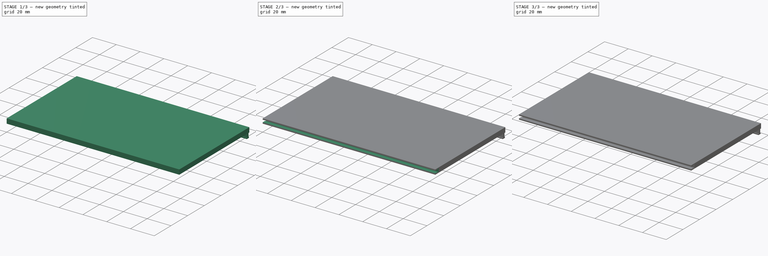
[diagram: build sequence overview — one tinted view per stage of 3, left to right]
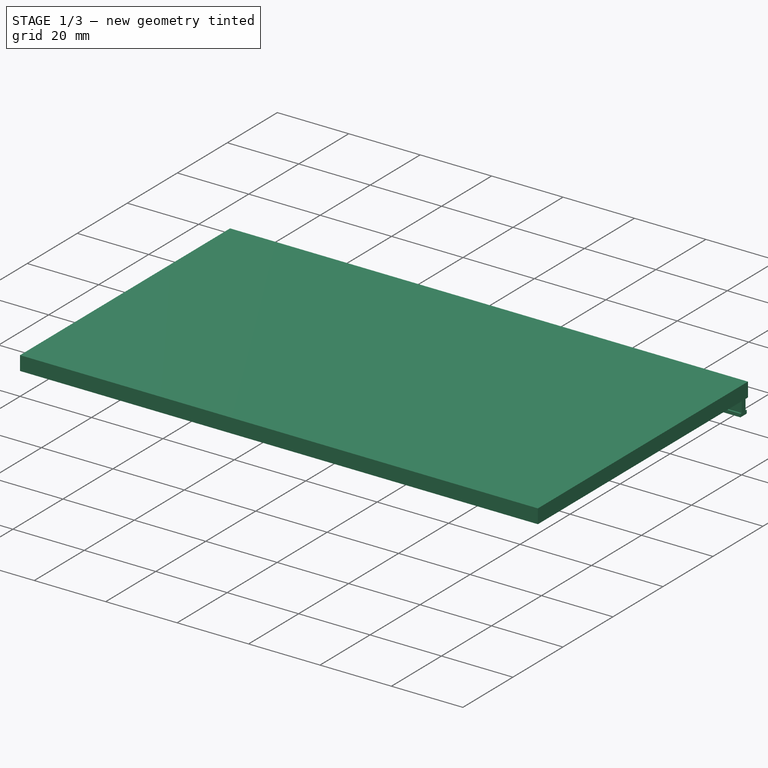
[diagram: stage 1 of 3 — iso view after this stage's code; geometry added in this stage tinted green]
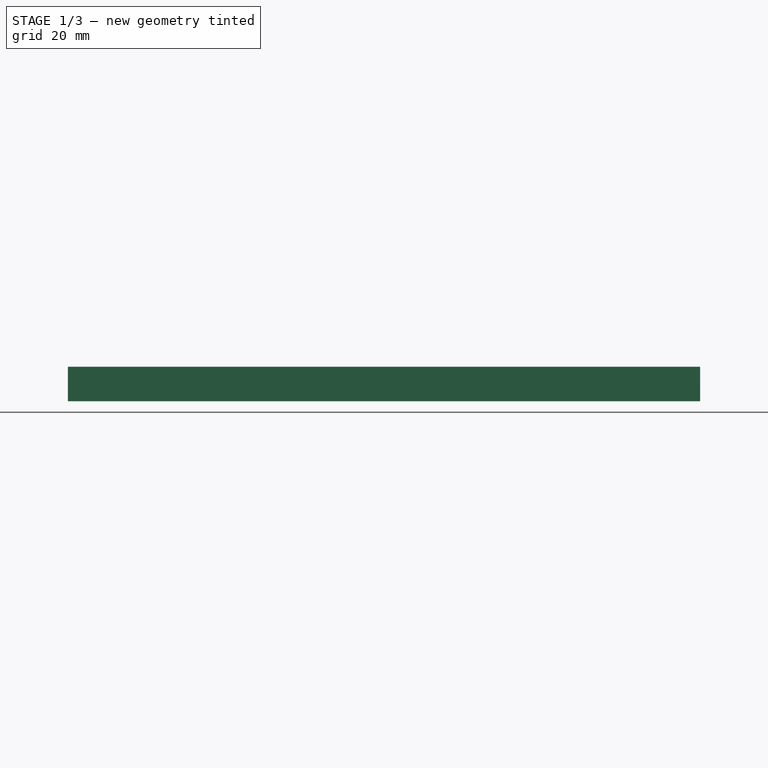
[diagram: stage 1 of 3 — front view after this stage's code; geometry added in this stage tinted green]
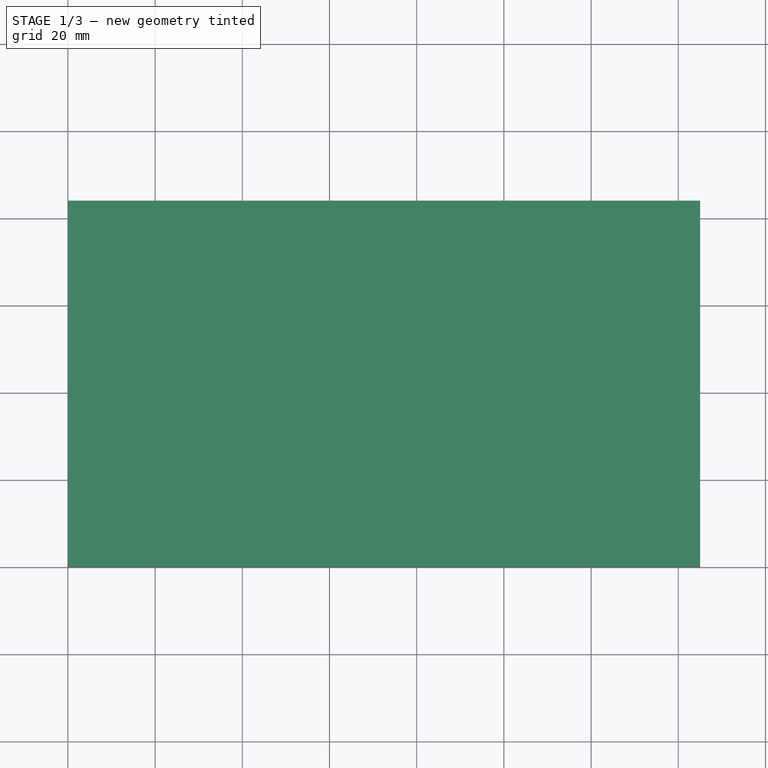
[diagram: stage 1 of 3 — top view after this stage's code; geometry added in this stage tinted green]
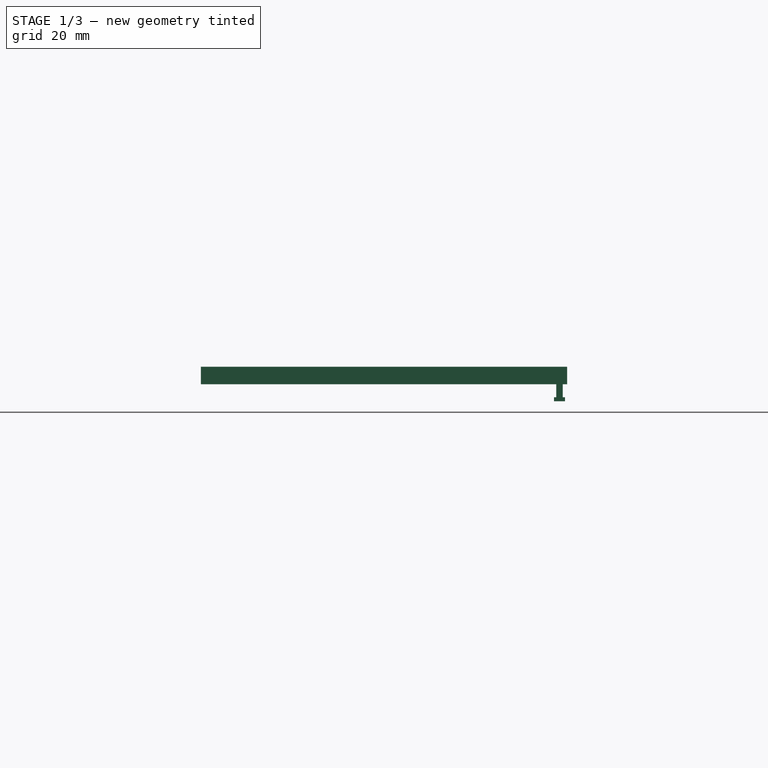
[diagram: stage 1 of 3 — right view after this stage's code; geometry added in this stage tinted green]
FCSTD DOCUMENT  (FreeCAD 1.0R38641 +468 (Git))
Label: Power-Box-Right-Side
License: All rights reserved
LicenseURL: https://en.wikipedia.org/wiki/All_rights_reserved
objects: Sketcher::SketchObject×5, PartDesign::Pad×3, PartDesign::Pocket×2, PartDesign::Body×1
note: 26 computed .brp shape members not serialized (recipe doc carries the construction recipe); baked Part::Feature solids carry a one-line shape summary decoded from their .brp

FEATURE [Sketcher::SketchObject] Sketch185  label="pb-panel"
  ArcFitTolerance = 1e-06
  AttachmentSupport = -> [XY_Plane020]
  FullyConstrained = true
  MakeInternals = false
  MapMode = 5
  sketch-geometry (4):
    g0: LineSegment StartX=0 StartY=84 StartZ=0 EndX=0 EndY=0 EndZ=0
    g1: LineSegment StartX=0 StartY=0 StartZ=0 EndX=145 EndY=0 EndZ=0
    g2: LineSegment StartX=145 StartY=0 StartZ=0 EndX=145 EndY=84 EndZ=0
    g3: LineSegment StartX=145 StartY=84 StartZ=0 EndX=0 EndY=84 EndZ=0
  constraints (12):
    c: Coincident(g0,g1)
    c: Coincident(g1,g2)
    c: Coincident(g2,g3)
    c: Coincident(g3,g0)
    c: Vertical(g0)
    c: Vertical(g2)
    c: Horizontal(g1)
    c: Horizontal(g3)
    c: Distance(g0,g2) = 145
    c: Distance(g1,g3) = 84
    c: DistanceX(g-1,g0) = 0
    c: DistanceY(g-1,g0) = 0
FEATURE [PartDesign::Pad] Pad088
  Direction = (0,0,1)
  Length = 4
  Length2 = 10
  Profile = -> Sketch185
  ReferenceAxis = -> Sketch185 [N_Axis]
  Refine = true
  Suppressed = false
  Type = 0
FEATURE [Sketcher::SketchObject] Sketch186  label="pb-top-trail"
  ArcFitTolerance = 1e-06
  AttachmentSupport = -> [YZ_Plane020]
  FullyConstrained = true
  MakeInternals = false
  MapMode = 5
  Placement = pos=(0,0,0) rot=(0.57735,0.57735,0.57735;2.0944rad)
  sketch-geometry (8):
    g0: LineSegment StartX=81.5 StartY=0 StartZ=0 EndX=83 EndY=0 EndZ=0
    g1: LineSegment StartX=83 StartY=0 StartZ=0 EndX=83 EndY=-3 EndZ=0
    g2: LineSegment StartX=83 StartY=-3 StartZ=0 EndX=81.5 EndY=-3 EndZ=0
    g3: LineSegment StartX=81.5 StartY=-3 StartZ=0 EndX=81.5 EndY=0 EndZ=0
    g4: LineSegment StartX=83.5 StartY=-3 StartZ=0 EndX=81 EndY=-3 EndZ=0
    g5: LineSegment StartX=81 StartY=-3 StartZ=0 EndX=81 EndY=-3.9 EndZ=0
    g6: LineSegment StartX=81 StartY=-3.9 StartZ=0 EndX=83.5 EndY=-3.9 EndZ=0
    g7: LineSegment StartX=83.5 StartY=-3.9 StartZ=0 EndX=83.5 EndY=-3 EndZ=0
  constraints (24):
    c: Coincident(g0,g1)
    c: Coincident(g1,g2)
    c: Coincident(g2,g3)
    c: Coincident(g3,g0)
    c: Horizontal(g0)
    c: Horizontal(g2)
    c: Vertical(g1)
    c: Vertical(g3)
    c: Distance(g1,g3) = 1.5
    c: Distance(g0,g2) = 3
    c: Coincident(g4,g5)
    c: Coincident(g5,g6)
    c: Coincident(g6,g7)
    c: Coincident(g7,g4)
    c: Horizontal(g4)
    c: Horizontal(g6)
    c: Vertical(g5)
    c: Vertical(g7)
    c: Distance(g5,g7) = 2.5
    c: Distance(g4,g6) = 0.9
    c: DistanceY(g4,g1) = 0
    c: DistanceY(g0,g-1) = 0
    c: DistanceX(g-1,g0) = 83
    c: DistanceX(g1,g4) = 0.5
FEATURE [PartDesign::Pad] Pad089
  BaseFeature = -> Pad088
  Direction = (1,0,0)
  Length = 145
  Length2 = 0
  Profile = -> Sketch186
  ReferenceAxis = -> Sketch186 [N_Axis]
  Refine = true
  Suppressed = false
  Type = 0
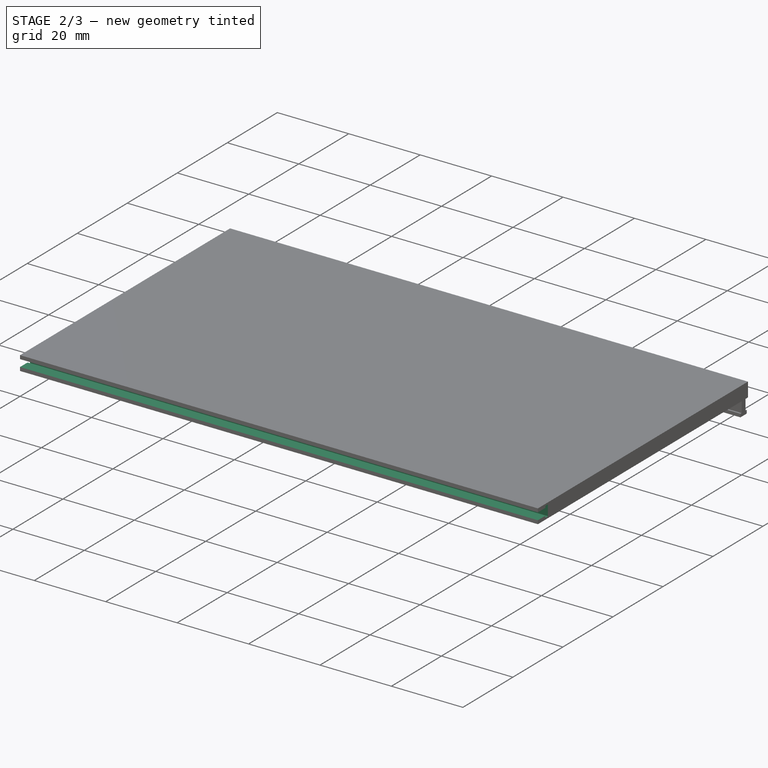
[diagram: stage 2 of 3 — iso view after this stage's code; geometry added in this stage tinted green]
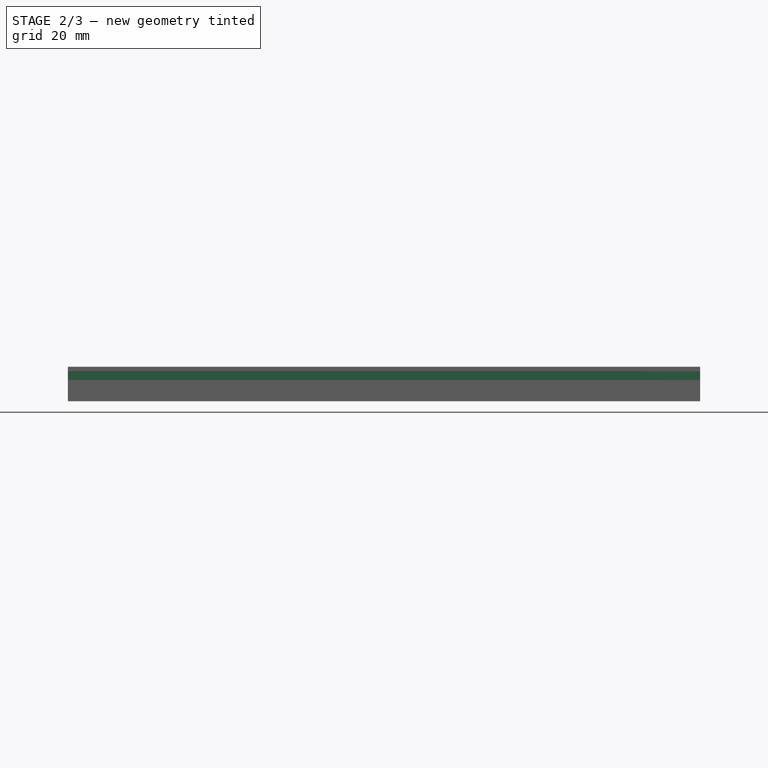
[diagram: stage 2 of 3 — front view after this stage's code; geometry added in this stage tinted green]
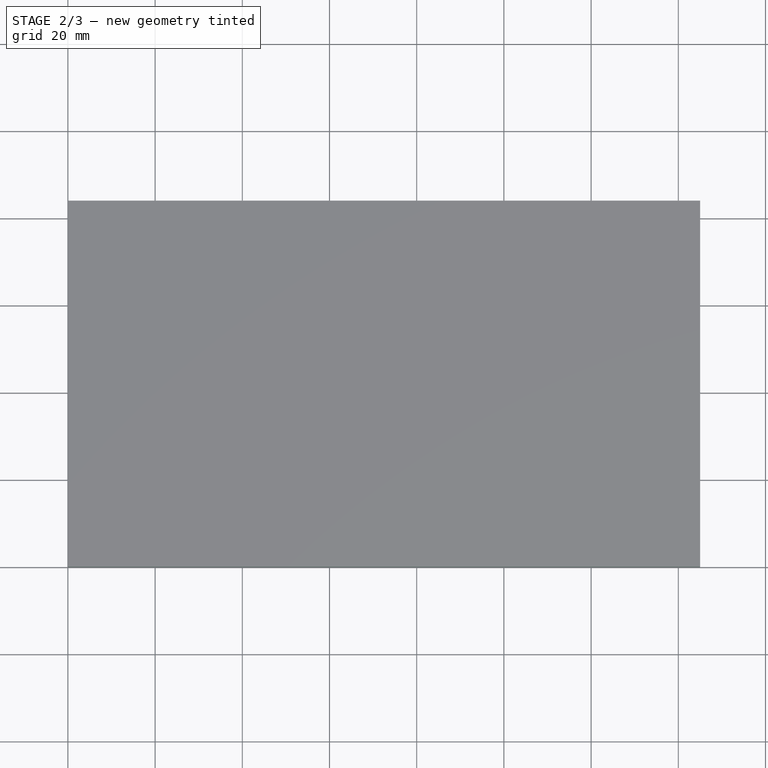
[diagram: stage 2 of 3 — top view after this stage's code; geometry added in this stage tinted green]
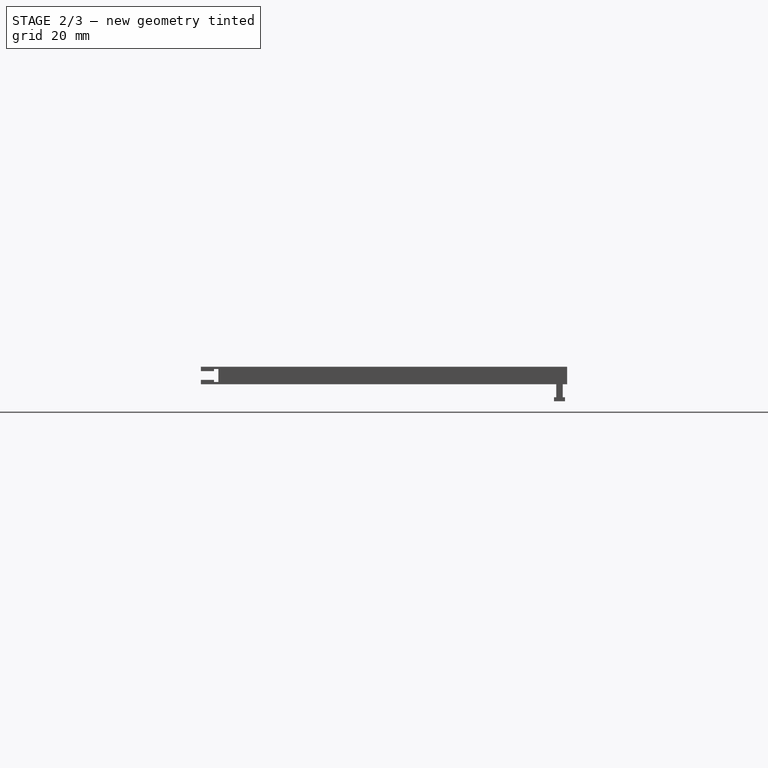
[diagram: stage 2 of 3 — right view after this stage's code; geometry added in this stage tinted green]
FEATURE [Sketcher::SketchObject] Sketch187  label="pb-bottom-trail"
  ArcFitTolerance = 1e-06
  AttachmentSupport = -> [YZ_Plane020]
  FullyConstrained = true
  MakeInternals = false
  MapMode = 5
  Placement = pos=(0,0,0) rot=(0.57735,0.57735,0.57735;2.0944rad)
  sketch-geometry (8):
    g0: LineSegment StartX=3 StartY=3 StartZ=0 EndX=0 EndY=3 EndZ=0
    g1: LineSegment StartX=0 StartY=3 StartZ=0 EndX=0 EndY=1 EndZ=0
    g2: LineSegment StartX=0 StartY=1 StartZ=0 EndX=3 EndY=1 EndZ=0
    g3: LineSegment StartX=3 StartY=1 StartZ=0 EndX=3 EndY=3 EndZ=0
    g4: LineSegment StartX=4 StartY=3.5 StartZ=0 EndX=3 EndY=3.5 EndZ=0
    g5: LineSegment StartX=3 StartY=3.5 StartZ=0 EndX=3 EndY=0.5 EndZ=0
    g6: LineSegment StartX=3 StartY=0.5 StartZ=0 EndX=4 EndY=0.5 EndZ=0
    g7: LineSegment StartX=4 StartY=0.5 StartZ=0 EndX=4 EndY=3.5 EndZ=0
  constraints (24):
    c: Coincident(g0,g1)
    c: Coincident(g1,g2)
    c: Coincident(g2,g3)
    c: Coincident(g3,g0)
    c: Horizontal(g0)
    c: Horizontal(g2)
    c: Vertical(g1)
    c: Vertical(g3)
    c: Distance(g1,g3) = 3
    c: Distance(g0,g2) = 2
    c: Coincident(g4,g5)
    c: Coincident(g5,g6)
    c: Coincident(g6,g7)
    c: Coincident(g7,g4)
    c: Horizontal(g4)
    c: Horizontal(g6)
    c: Vertical(g5)
    c: Vertical(g7)
    c: Distance(g5,g7) = 1
    c: Distance(g4,g6) = 3
    c: DistanceY(g-1,g1) = 1
    c: DistanceX(g-1,g1) = 0
    c: DistanceX(g0,g4) = 0
    c: DistanceY(g0,g4) = 0.5
FEATURE [PartDesign::Pocket] Pocket109
  BaseFeature = -> Pad089
  Direction = (-1,0,0)
  Length = 145
  Length2 = 5
  Profile = -> Sketch187
  ReferenceAxis = -> Sketch187 [N_Axis]
  Refine = true
  Reversed = true
  Suppressed = false
  Type = 0
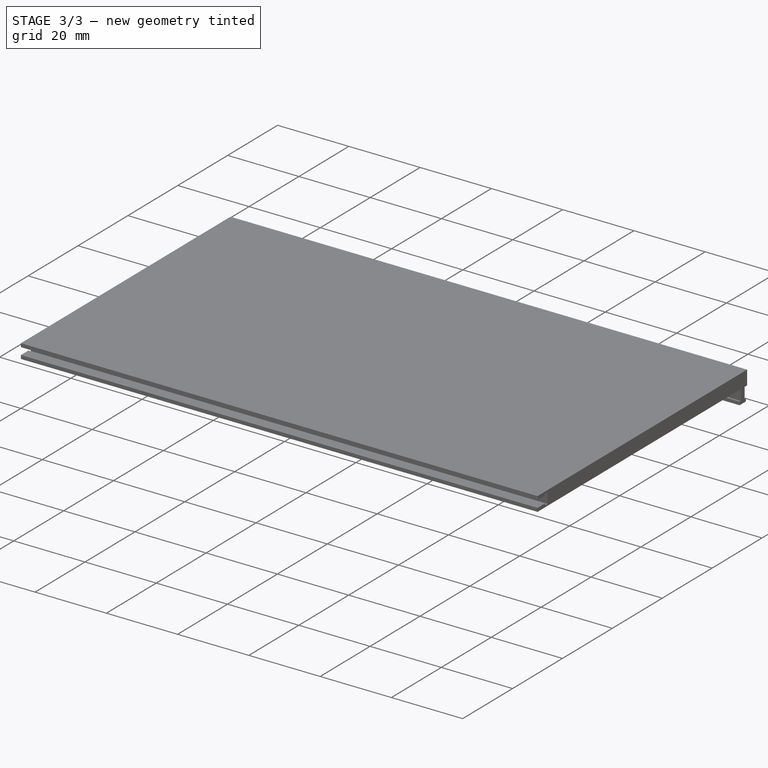
[diagram: stage 3 of 3 — iso view after this stage's code; geometry added in this stage tinted green]
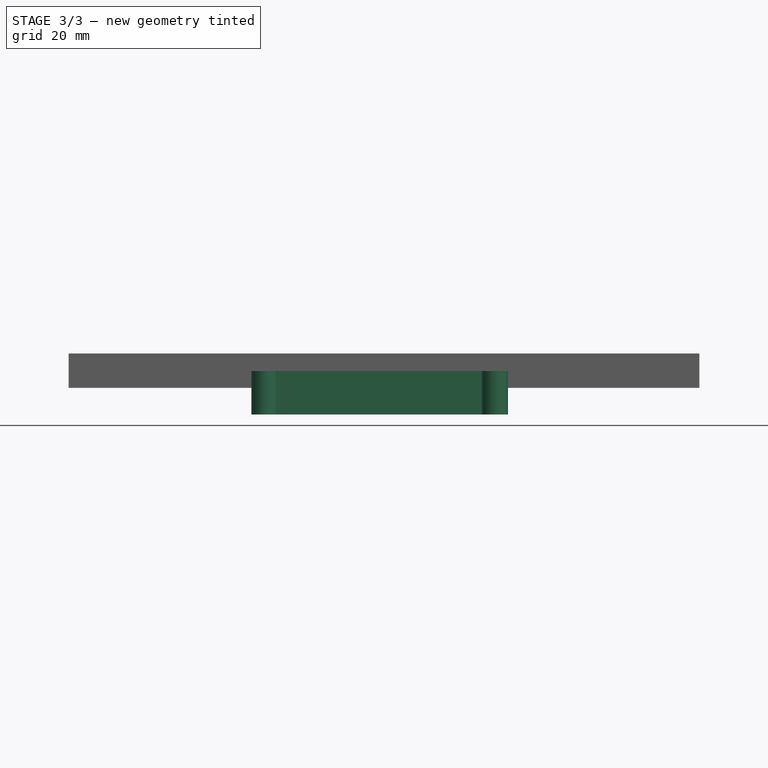
[diagram: stage 3 of 3 — front view after this stage's code; geometry added in this stage tinted green]
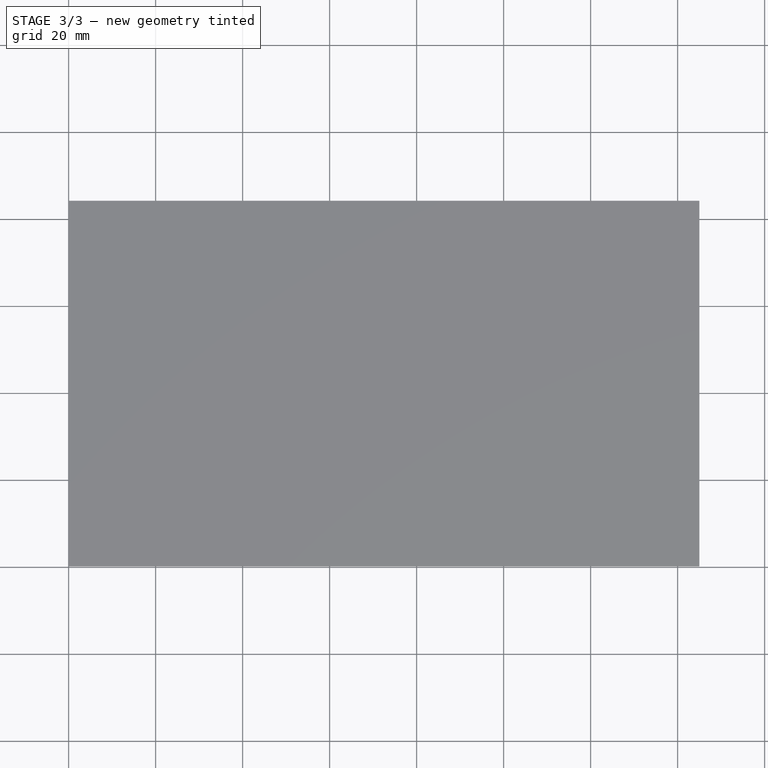
[diagram: stage 3 of 3 — top view after this stage's code; geometry added in this stage tinted green]
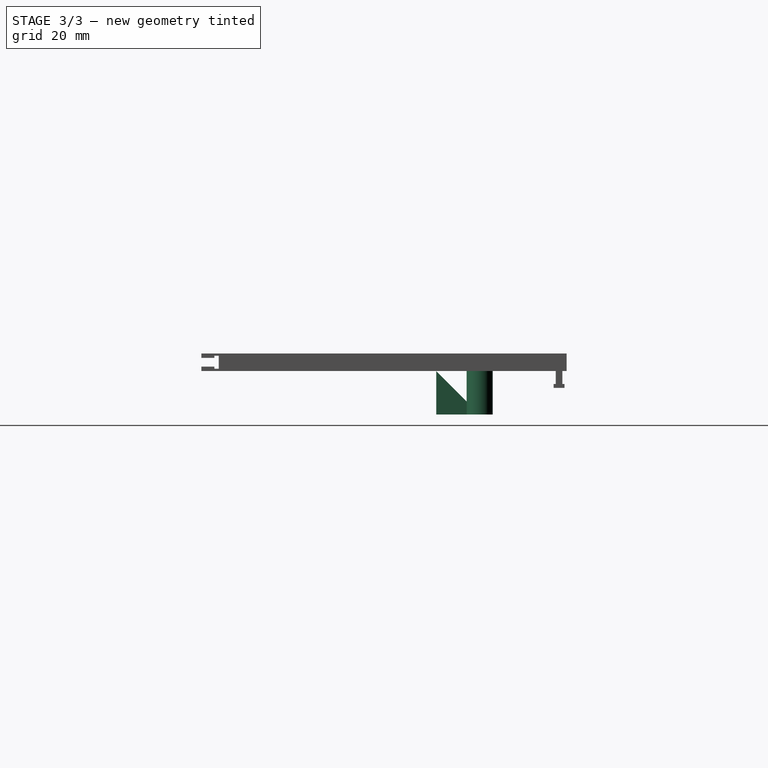
[diagram: stage 3 of 3 — right view after this stage's code; geometry added in this stage tinted green]
FEATURE [Sketcher::SketchObject] Sketch188  label="converter-holder-hill"
  ArcFitTolerance = 1e-06
  AttachmentSupport = -> [XY_Plane020]
  FullyConstrained = true
  MakeInternals = false
  MapMode = 5
  sketch-geometry (6):
    g0: Circle CenterX=98 CenterY=64 CenterZ=0 NormalX=0 NormalY=0 NormalZ=1 AngleXU=0 Radius=3
    g1: Circle CenterX=45 CenterY=64 CenterZ=0 NormalX=0 NormalY=0 NormalZ=1 AngleXU=0 Radius=3
    g2: LineSegment StartX=95 StartY=67 StartZ=0 EndX=48 EndY=67 EndZ=0
    g3: LineSegment StartX=48 StartY=67 StartZ=0 EndX=48 EndY=54 EndZ=0
    g4: LineSegment StartX=48 StartY=54 StartZ=0 EndX=95 EndY=54 EndZ=0
    g5: LineSegment StartX=95 StartY=54 StartZ=0 EndX=95 EndY=67 EndZ=0
  constraints (18):
    c: Diameter(g0) = 6
    c: Diameter(g1) = 6
    c: DistanceX(g1,g0) = 53
    c: Coincident(g2,g3)
    c: Coincident(g3,g4)
    c: Coincident(g4,g5)
    c: Coincident(g5,g2)
    c: Horizontal(g2)
    c: Horizontal(g4)
    c: Vertical(g3)
    c: Vertical(g5)
    c: Distance(g3,g5) = 47
    c: Distance(g2,g4) = 13
    c: DistanceY(g-1,g1) = 64
    c: DistanceY(g0,g1) = 0
    c: DistanceX(g-1,g1) = 45
    c: DistanceX(g-1,g2) = 48
    c: DistanceY(g-1,g3) = 54
FEATURE [PartDesign::Pad] Pad090
  BaseFeature = -> Pocket109
  Direction = (0,0,1)
  Length = 10
  Length2 = 10
  Profile = -> Sketch188
  ReferenceAxis = -> Sketch188 [N_Axis]
  Refine = true
  Reversed = true
  Suppressed = false
  Type = 0
FEATURE [Sketcher::SketchObject] Sketch189  label="converter-holder-holes"
  ArcFitTolerance = 1e-06
  AttachmentSupport = -> [Pad090]
  FullyConstrained = true
  MakeInternals = false
  MapMode = 5
  Placement = pos=(0,0,-10) rot=(1,0,0;3.14159rad)
  sketch-geometry (2):
    g0: Circle CenterX=45 CenterY=-64 CenterZ=0 NormalX=0 NormalY=0 NormalZ=1 AngleXU=0 Radius=1.5
    g1: Circle CenterX=98 CenterY=-64 CenterZ=0 NormalX=0 NormalY=0 NormalZ=1 AngleXU=0 Radius=1.5
  constraints (6):
    c: Diameter(g0) = 3
    c: Diameter(g1) = 3
    c: DistanceY(g0,g-1) = 64
    c: DistanceX(g-1,g0) = 45
    c: DistanceX(g0,g1) = 53
    c: DistanceY(g0,g1) = 0
FEATURE [PartDesign::Pocket] Pocket110
  BaseFeature = -> Pad090
  Direction = (0,0,1)
  Length = 7
  Length2 = 5
  Profile = -> Sketch189
  ReferenceAxis = -> Sketch189 [N_Axis]
  Refine = true
  Suppressed = false
  Type = 0
FEATURE [PartDesign::Body] Body020  label="Power-Box-R"
  AllowCompound = false
  Group = -> [Sketch185,Pad088,Sketch186,Pad089,Sketch187,Pocket109,Sketch188,Pad090,Sketch189,Pocket110]
  Origin = -> Origin020
  Tip = -> Pocket110
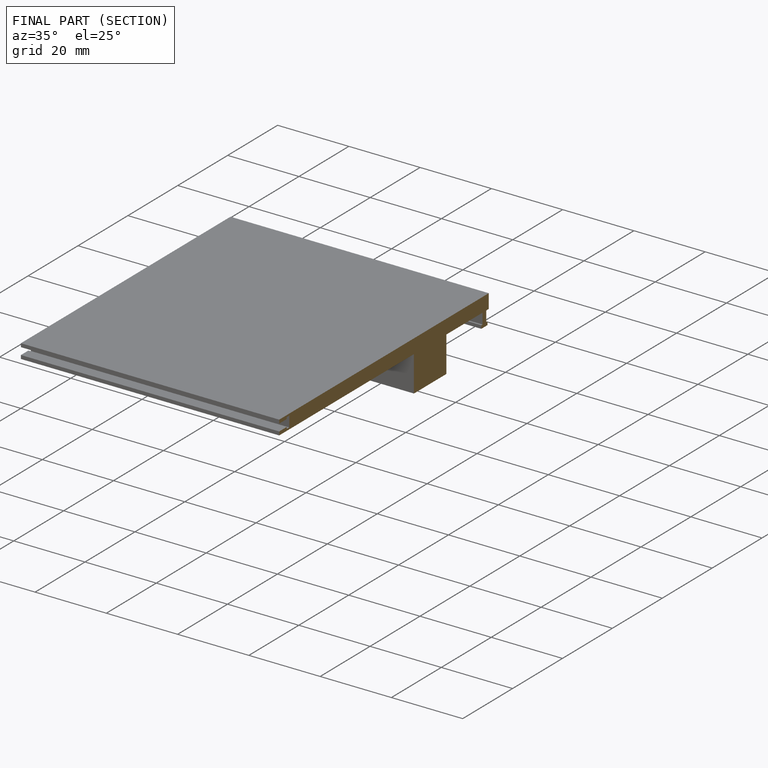
[diagram: finished part — half-section view (interior)]
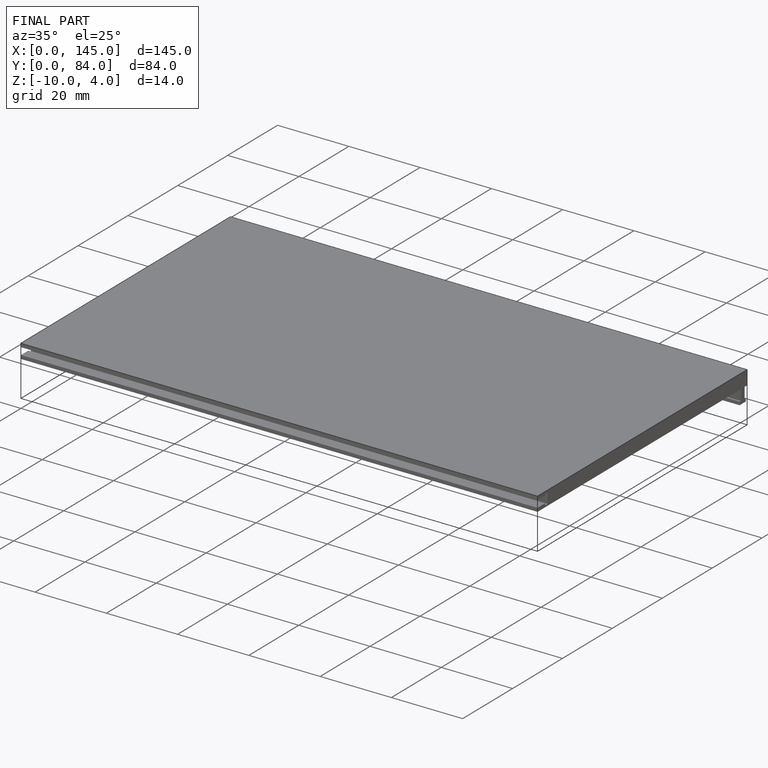
[diagram: finished part — iso view with bounding-box wireframe]
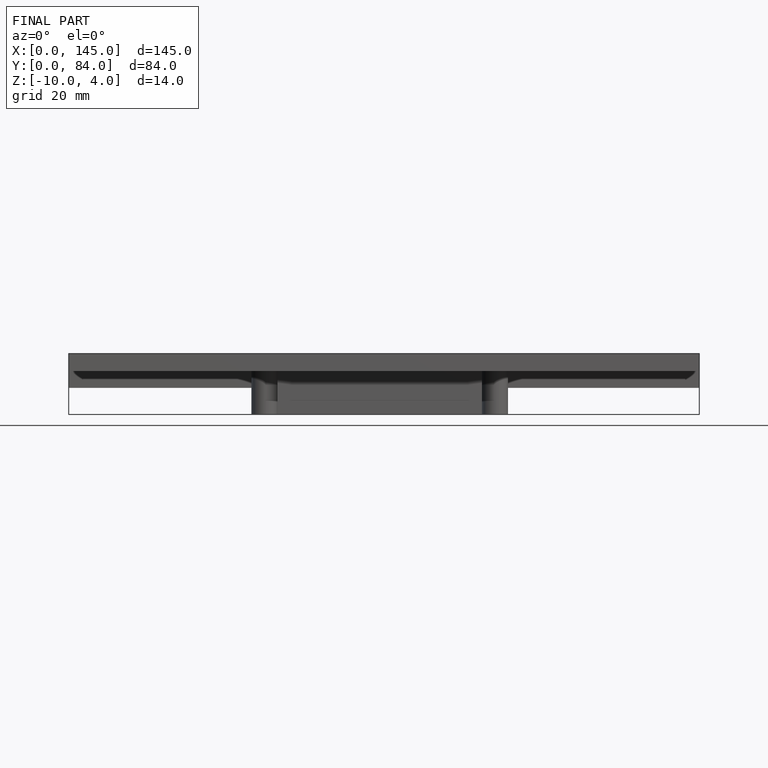
[diagram: finished part — front view with bounding-box wireframe]
